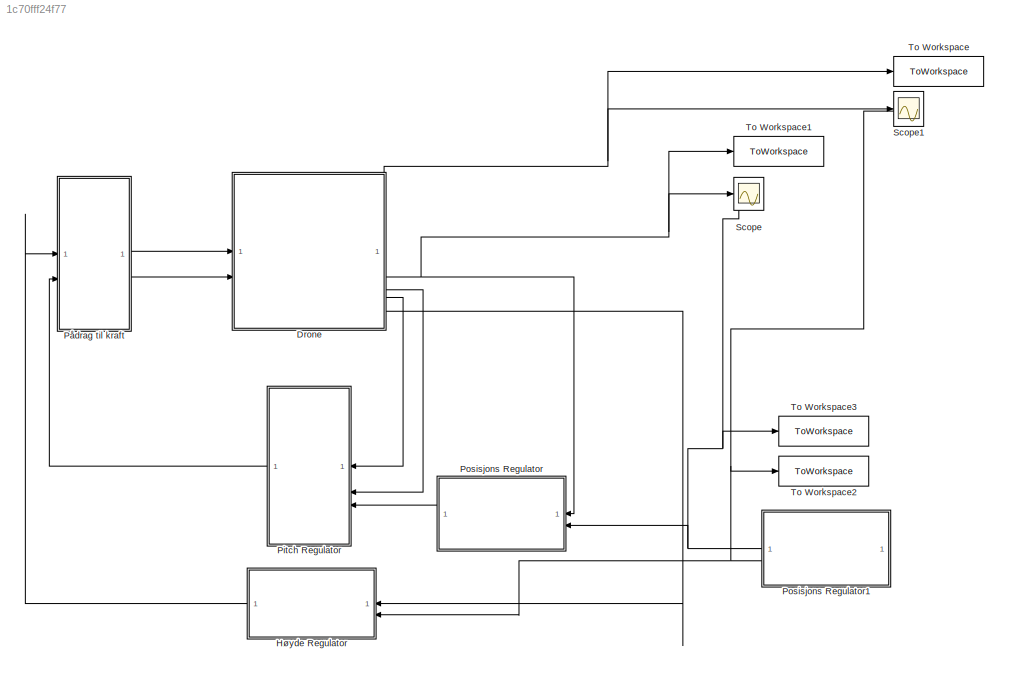
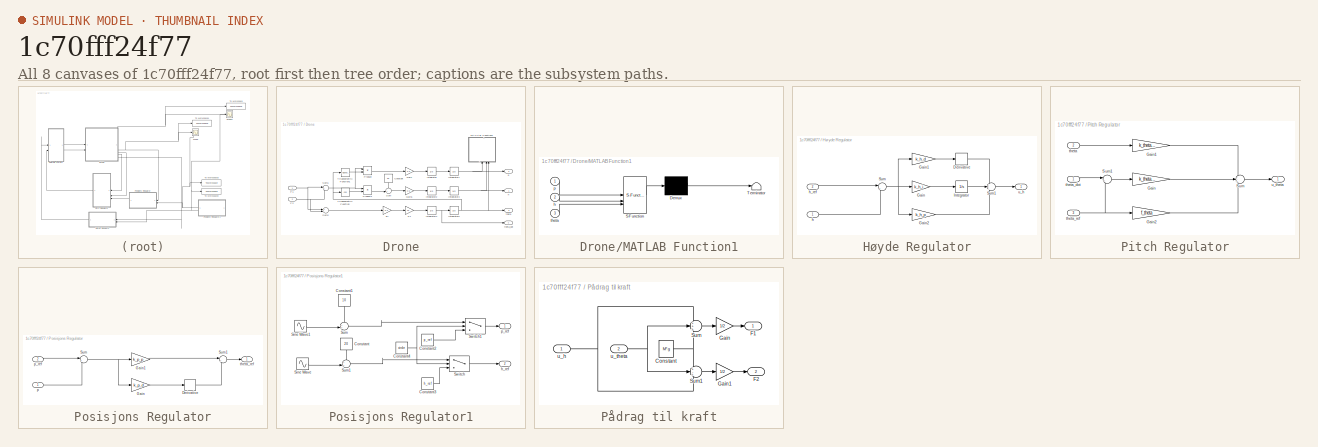
[diagram: thumbnail index - all 8 canvases of the model, root first then tree order]
MODEL slx_1c70fff24f77
KIND model
CONFIG AbsTol = auto
CONFIG EnableMultiTasking = off
CONFIG FixedStep = auto
CONFIG MaxStep = auto
CONFIG MinStep = auto
CONFIG RelTol = 1e-3
CONFIG SampleTimeConstraint = Unconstrained
CONFIG SolverName = VariableStepAuto
CONFIG StartTime = 0.0
CONFIG StopTime = stopTime
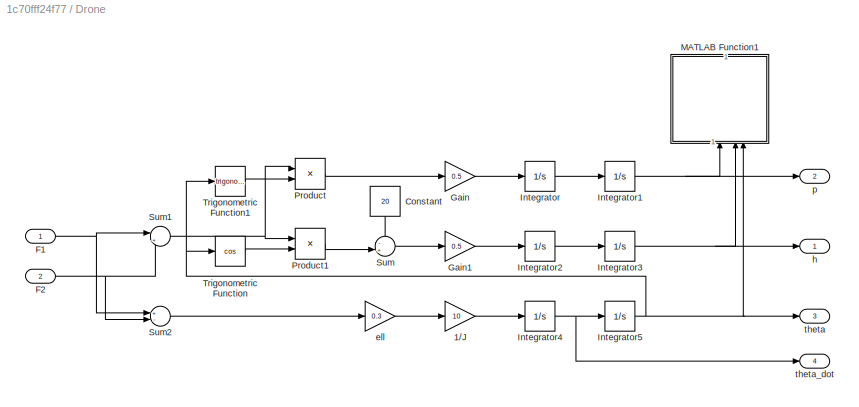
BLOCK [SubSystem] Drone
BLOCK [Gain] Drone/1//J
  Gain = 10
BLOCK [Constant] Drone/Constant
  NameLocation = left
  Value = 20
BLOCK [Inport] Drone/F1
BLOCK [Inport] Drone/F2
  Port = 2
BLOCK [Gain] Drone/Gain
  Gain = 0.5
BLOCK [Gain] Drone/Gain1
  Gain = 0.5
BLOCK [Integrator] Drone/Integrator
BLOCK [Integrator] Drone/Integrator1
BLOCK [Integrator] Drone/Integrator2
BLOCK [Integrator] Drone/Integrator3
  LimitOutput = on
  LowerSaturationLimit = 0
BLOCK [Integrator] Drone/Integrator4
BLOCK [Integrator] Drone/Integrator5
BLOCK [SubSystem] Drone/MATLAB Function1
  ErrorFcn = Stateflow.Translate.translate
  NameLocation = right
  PermitHierarchicalResolution = ExplicitOnly
  SFBlockType = MATLAB Function
  SystemSampleTime = 1/30
  TreatAsAtomicUnit = on
BLOCK [Demux] Drone/MATLAB Function1/ Demux 
  Outputs = 1
BLOCK [S-Function] Drone/MATLAB Function1/ SFunction 
  EnableBusSupport = on
  FunctionName = sf_sfun
  PortCounts = [3 1]
  SFcnIsStateOwnerBlock = off
  SFunctionDeploymentMode = off
  Tag = Stateflow S-Function 3
BLOCK [Terminator] Drone/MATLAB Function1/ Terminator 
BLOCK [Inport] Drone/MATLAB Function1/h
  Port = 2
BLOCK [Inport] Drone/MATLAB Function1/p
BLOCK [Inport] Drone/MATLAB Function1/theta
  Port = 3
BLOCK [Product] Drone/Product
BLOCK [Product] Drone/Product1
BLOCK [Sum] Drone/Sum
  Inputs = -+|
BLOCK [Sum] Drone/Sum1
  Inputs = |++
BLOCK [Sum] Drone/Sum2
  Inputs = +-|
BLOCK [Trigonometry] Drone/Trigonometric Function
  Operator = cos
BLOCK [Trigonometry] Drone/Trigonometric Function1
BLOCK [Gain] Drone/ell
  Gain = 0.3
BLOCK [Outport] Drone/h
BLOCK [Outport] Drone/p
  Port = 2
BLOCK [Outport] Drone/theta
  Port = 3
BLOCK [Outport] Drone/theta_dot
  Port = 4
BLOCK [SubSystem] Høyde Regulator
  NameLocation = top
BLOCK [Derivative] Høyde Regulator/Derivative
BLOCK [Gain] Høyde Regulator/Gain
  Gain = k_h_i
BLOCK [Gain] Høyde Regulator/Gain1
  Gain = k_h_d
BLOCK [Gain] Høyde Regulator/Gain2
  Gain = k_h_p
BLOCK [Integrator] Høyde Regulator/Integrator
BLOCK [Sum] Høyde Regulator/Sum
  Inputs = |+-
BLOCK [Sum] Høyde Regulator/Sum1
  Inputs = +++
BLOCK [Inport] Høyde Regulator/h
BLOCK [Inport] Høyde Regulator/h_ref
  Port = 2
BLOCK [Outport] Høyde Regulator/u_h
BLOCK [SubSystem] Pitch Regulator
  NameLocation = top
BLOCK [Gain] Pitch Regulator/Gain
  Gain = k_theta_d
BLOCK [Gain] Pitch Regulator/Gain1
  Gain = k_theta_p
BLOCK [Gain] Pitch Regulator/Gain2
  Gain = f_theta
BLOCK [Sum] Pitch Regulator/Sum
  Inputs = --+
BLOCK [Sum] Pitch Regulator/Sum1
  Inputs = |+-
BLOCK [Inport] Pitch Regulator/theta
  Port = 2
BLOCK [Inport] Pitch Regulator/theta_dot
BLOCK [Inport] Pitch Regulator/theta_ref
  Port = 3
BLOCK [Outport] Pitch Regulator/u_theta
BLOCK [SubSystem] Posisjons Regulator
  NameLocation = top
BLOCK [Derivative] Posisjons Regulator/Derivative
BLOCK [Gain] Posisjons Regulator/Gain
  Gain = k_p_d
BLOCK [Gain] Posisjons Regulator/Gain1
  Gain = k_p_p
BLOCK [Sum] Posisjons Regulator/Sum
  Inputs = |+-
BLOCK [Sum] Posisjons Regulator/Sum1
  Inputs = |++
BLOCK [Inport] Posisjons Regulator/p
BLOCK [Inport] Posisjons Regulator/p_ref
  Port = 2
BLOCK [Outport] Posisjons Regulator/theta_ref
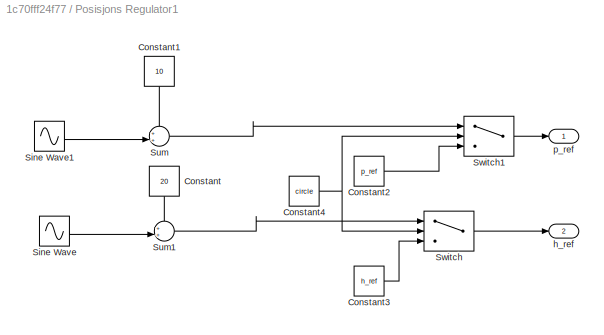
BLOCK [SubSystem] Posisjons Regulator1
  NameLocation = top
BLOCK [Constant] Posisjons Regulator1/Constant
  NameLocation = left
  Value = 20
BLOCK [Constant] Posisjons Regulator1/Constant1
  NameLocation = left
  Value = 10
BLOCK [Constant] Posisjons Regulator1/Constant2
  Value = p_ref
BLOCK [Constant] Posisjons Regulator1/Constant3
  Value = h_ref
BLOCK [Constant] Posisjons Regulator1/Constant4
  Value = circle
BLOCK [Sin] Posisjons Regulator1/Sine Wave
  Amplitude = 5
  Frequency = 1/4
  SampleTime = 0
BLOCK [Sin] Posisjons Regulator1/Sine Wave1
  Amplitude = 5
  Frequency = 1/4
  Phase = pi/2
  SampleTime = 0
BLOCK [Sum] Posisjons Regulator1/Sum
  Inputs = ++|
BLOCK [Sum] Posisjons Regulator1/Sum1
  Inputs = ++|
BLOCK [Switch] Posisjons Regulator1/Switch
  Criteria = u2 > Threshold
  InputSameDT = off
  SaturateOnIntegerOverflow = off
BLOCK [Switch] Posisjons Regulator1/Switch1
  Criteria = u2 > Threshold
  InputSameDT = off
  SaturateOnIntegerOverflow = off
BLOCK [Outport] Posisjons Regulator1/h_ref
  Port = 2
BLOCK [Outport] Posisjons Regulator1/p_ref
BLOCK [SubSystem] Pådrag til kraft
BLOCK [Constant] Pådrag til kraft/Constant
  Value = M*g
BLOCK [Outport] Pådrag til kraft/F1
BLOCK [Outport] Pådrag til kraft/F2
  Port = 2
BLOCK [Gain] Pådrag til kraft/Gain
  Gain = 1/2
BLOCK [Gain] Pådrag til kraft/Gain1
  Gain = 1/2
BLOCK [Sum] Pådrag til kraft/Sum
  Inputs = +++
BLOCK [Sum] Pådrag til kraft/Sum1
  Inputs = +-+
BLOCK [Inport] Pådrag til kraft/u_h
BLOCK [Inport] Pådrag til kraft/u_theta
  Port = 2
BLOCK [Scope] Scope
  Floating = off
  NumInputPorts = 2
  ScopeSpecificationString = Simulink.scopes.TimeScopeBlockCfg('CurrentConfiguration', extmgr.ConfigurationSet(extmgr.Configuration('Core','General UI',true),extmgr.Configuration('Core','Source UI',true),extmgr.Configuration('Sources','WiredSimulink',true),extmgr.Configuration('Visuals','Time Domain',true,'SerializedDisplays',{struct('MinYLimReal','-1.25','MaxYLimReal','11.25','YLabelReal','','MinYLimMag','0.00000','MaxYLimMa...<+1380ch>
BLOCK [Scope] Scope1
  Floating = off
  NumInputPorts = 2
  ScopeSpecificationString = Simulink.scopes.TimeScopeBlockCfg('CurrentConfiguration', extmgr.ConfigurationSet(extmgr.Configuration('Core','General UI',true),extmgr.Configuration('Core','Source UI',true),extmgr.Configuration('Sources','WiredSimulink',true,'DataLoggingVariableName','ScopeData1'),extmgr.Configuration('Visuals','Time Domain',true,'SerializedDisplays',{struct('MinYLimReal','-1.51414','MaxYLimReal','13.6273','YLab...<+1459ch>
BLOCK [ToWorkspace] To Workspace
  FixptAsFi = on
  MaxDataPoints = inf
  SampleTime = -1
  VariableName = h
BLOCK [ToWorkspace] To Workspace1
  FixptAsFi = on
  MaxDataPoints = inf
  SampleTime = -1
  VariableName = p
BLOCK [ToWorkspace] To Workspace2
  FixptAsFi = on
  MaxDataPoints = inf
  SampleTime = -1
  VariableName = h_ref
BLOCK [ToWorkspace] To Workspace3
  FixptAsFi = on
  MaxDataPoints = inf
  SampleTime = -1
  VariableName = p_ref
LINE Drone/1//J:1 -> Drone/Integrator4:1
LINE Drone/Constant:1 -> Drone/Sum:1
NET Drone/F1:1 -> Drone/Sum1:1, Drone/Sum2:1
NET Drone/F2:1 -> Drone/Sum1:2, Drone/Sum2:2
LINE Drone/Gain1:1 -> Drone/Integrator2:1
LINE Drone/Gain:1 -> Drone/Integrator:1
NET Drone/Integrator1:1 -> Drone/MATLAB Function1:1, Drone/p:1
LINE Drone/Integrator2:1 -> Drone/Integrator3:1
NET Drone/Integrator3:1 -> Drone/MATLAB Function1:2, Drone/h:1
NET Drone/Integrator4:1 -> Drone/Integrator5:1, Drone/theta_dot:1
NET Drone/Integrator5:1 -> Drone/MATLAB Function1:3, Drone/Trigonometric Function1:1, Drone/Trigonometric Function:1, Drone/theta:1
LINE Drone/Integrator:1 -> Drone/Integrator1:1
LINE Drone/Product1:1 -> Drone/Sum:2
LINE Drone/Product:1 -> Drone/Gain:1
NET Drone/Sum1:1 -> Drone/Product1:1, Drone/Product:1
LINE Drone/Sum2:1 -> Drone/ell:1
LINE Drone/Sum:1 -> Drone/Gain1:1
LINE Drone/Trigonometric Function1:1 -> Drone/Product:2
LINE Drone/Trigonometric Function:1 -> Drone/Product1:2
LINE Drone/ell:1 -> Drone/1//J:1
NET Drone:1 -> Høyde Regulator:1, Scope1:1, To Workspace:1
NET Drone:2 -> Posisjons Regulator:1, Scope:1, To Workspace1:1
LINE Drone:3 -> Pitch Regulator:2
LINE Drone:4 -> Pitch Regulator:1
LINE Høyde Regulator/Derivative:1 -> Høyde Regulator/Sum1:1
LINE Høyde Regulator/Gain1:1 -> Høyde Regulator/Derivative:1
LINE Høyde Regulator/Gain2:1 -> Høyde Regulator/Sum1:3
LINE Høyde Regulator/Gain:1 -> Høyde Regulator/Integrator:1
LINE Høyde Regulator/Integrator:1 -> Høyde Regulator/Sum1:2
LINE Høyde Regulator/Sum1:1 -> Høyde Regulator/u_h:1
NET Høyde Regulator/Sum:1 -> Høyde Regulator/Gain1:1, Høyde Regulator/Gain2:1, Høyde Regulator/Gain:1
LINE Høyde Regulator/h:1 -> Høyde Regulator/Sum:2
LINE Høyde Regulator/h_ref:1 -> Høyde Regulator/Sum:1
LINE Høyde Regulator:1 -> Pådrag til kraft:1
LINE Pitch Regulator/Gain1:1 -> Pitch Regulator/Sum:1
LINE Pitch Regulator/Gain2:1 -> Pitch Regulator/Sum:3
LINE Pitch Regulator/Gain:1 -> Pitch Regulator/Sum:2
LINE Pitch Regulator/Sum1:1 -> Pitch Regulator/Gain:1
LINE Pitch Regulator/Sum:1 -> Pitch Regulator/u_theta:1
LINE Pitch Regulator/theta:1 -> Pitch Regulator/Gain1:1
LINE Pitch Regulator/theta_dot:1 -> Pitch Regulator/Sum1:1
NET Pitch Regulator/theta_ref:1 -> Pitch Regulator/Gain2:1, Pitch Regulator/Sum1:2
LINE Pitch Regulator:1 -> Pådrag til kraft:2
LINE Posisjons Regulator/Derivative:1 -> Posisjons Regulator/Sum1:2
LINE Posisjons Regulator/Gain1:1 -> Posisjons Regulator/Sum1:1
LINE Posisjons Regulator/Gain:1 -> Posisjons Regulator/Derivative:1
LINE Posisjons Regulator/Sum1:1 -> Posisjons Regulator/theta_ref:1
NET Posisjons Regulator/Sum:1 -> Posisjons Regulator/Gain1:1, Posisjons Regulator/Gain:1
LINE Posisjons Regulator/p:1 -> Posisjons Regulator/Sum:2
LINE Posisjons Regulator/p_ref:1 -> Posisjons Regulator/Sum:1
LINE Posisjons Regulator1/Constant1:1 -> Posisjons Regulator1/Sum:1
LINE Posisjons Regulator1/Constant2:1 -> Posisjons Regulator1/Switch1:3
LINE Posisjons Regulator1/Constant3:1 -> Posisjons Regulator1/Switch:3
NET Posisjons Regulator1/Constant4:1 -> Posisjons Regulator1/Switch1:2, Posisjons Regulator1/Switch:2
LINE Posisjons Regulator1/Constant:1 -> Posisjons Regulator1/Sum1:1
LINE Posisjons Regulator1/Sine Wave1:1 -> Posisjons Regulator1/Sum:2
LINE Posisjons Regulator1/Sine Wave:1 -> Posisjons Regulator1/Sum1:2
LINE Posisjons Regulator1/Sum1:1 -> Posisjons Regulator1/Switch:1
LINE Posisjons Regulator1/Sum:1 -> Posisjons Regulator1/Switch1:1
LINE Posisjons Regulator1/Switch1:1 -> Posisjons Regulator1/p_ref:1
LINE Posisjons Regulator1/Switch:1 -> Posisjons Regulator1/h_ref:1
NET Posisjons Regulator1:1 -> Posisjons Regulator:2, Scope:2, To Workspace3:1
NET Posisjons Regulator1:2 -> Høyde Regulator:2, Scope1:2, To Workspace2:1
LINE Posisjons Regulator:1 -> Pitch Regulator:3
NET Pådrag til kraft/Constant:1 -> Pådrag til kraft/Sum1:1, Pådrag til kraft/Sum:3
LINE Pådrag til kraft/Gain1:1 -> Pådrag til kraft/F2:1
LINE Pådrag til kraft/Gain:1 -> Pådrag til kraft/F1:1
LINE Pådrag til kraft/Sum1:1 -> Pådrag til kraft/Gain1:1
LINE Pådrag til kraft/Sum:1 -> Pådrag til kraft/Gain:1
NET Pådrag til kraft/u_h:1 -> Pådrag til kraft/Sum1:3, Pådrag til kraft/Sum:1
NET Pådrag til kraft/u_theta:1 -> Pådrag til kraft/Sum1:2, Pådrag til kraft/Sum:2
LINE Pådrag til kraft:1 -> Drone:1
LINE Pådrag til kraft:2 -> Drone:2
note: NET lines group one-source signal fan-out (src -> all destinations, sorted); 1:1 wires keep LINE
CHART Drone/MATLAB Function1 states=1 transitions=1
  STATE_LABEL 'eML_blk_kernel()'
  STATE_LABEL 'SCRIPT:\nfunction plot_drone(p, h, theta)\n    % Constants\n    N = 40;\n    ell = 0.3;\n\n    % Persistent variables\n    persistent buffer_p buffer_h writeIdx iter;\n    persistent Drone Trace_vector;\n    \n    % Initialize iteration count\n    if isempty(iter)\n        iter = 0;\n    else\n        iter = iter + 1;\n    end\n\n    % Buffer Initialization\n    if isempty(buffer_p)\n        buffer_p = zeros(N, 1);\n...<+3608ch>'
CHART  states=0 transitions=0
